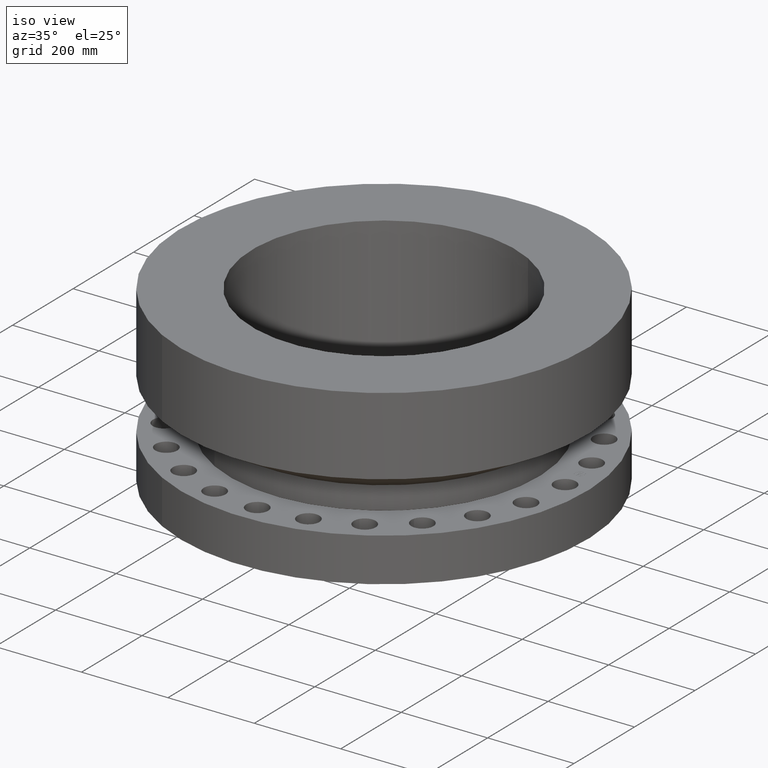
[diagram: clean part render]
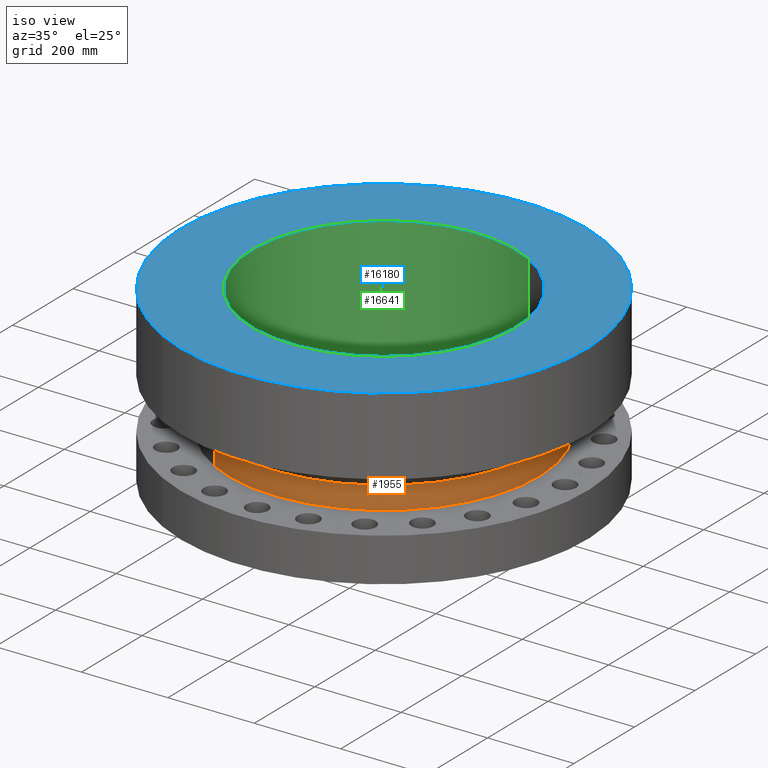
[diagram: same view with three faces highlighted in distinct colors, each labeled with its STEP entity id]
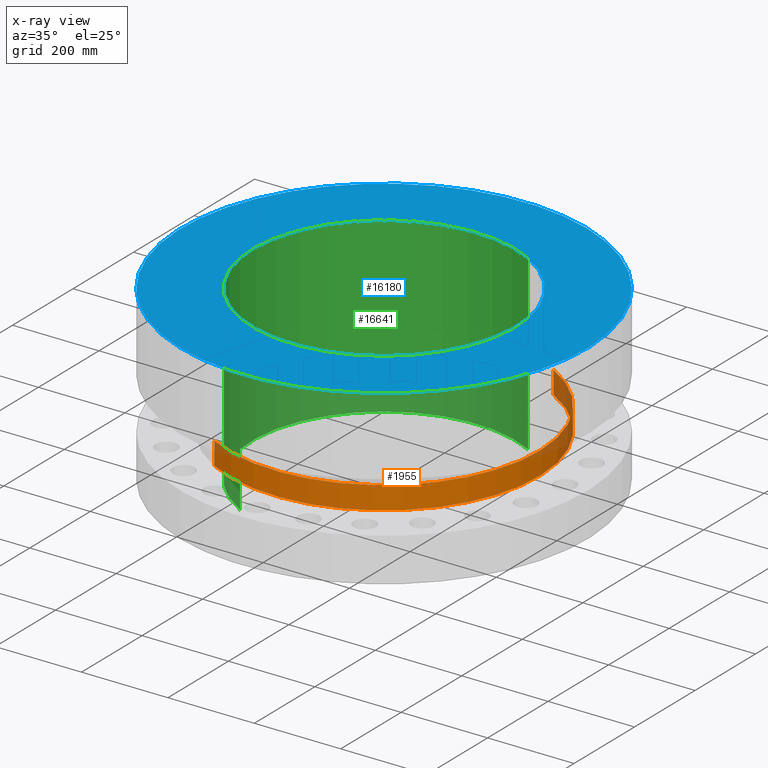
[diagram: x-ray of the same camera — body ghosted, the three highlighted faces saturated]
A machine part, iso view with three faces highlighted in distinct colors.
The next image is the same camera in x-ray (body ghosted, the three faces saturated) — at least one of them is partly hidden behind the body in this view.
Their STEP definitions:

[orange] entity #1955 — the highlighted cylindrical surface (partial cylindrical patch) has radius 358.775 mm, axis along (0, 0, -1).
#1717=AXIS2_PLACEMENT_3D('Circle Axis2P3D',#1715,#1716,$) ;
#1928=AXIS2_PLACEMENT_3D('Cylinder Axis2P3D',#1925,#1926,#1927) ;
#1939=AXIS2_PLACEMENT_3D('Circle Axis2P3D',#1937,#1938,$) ;
#1712=CARTESIAN_POINT('Vertex',(6.77188573281,12.3958536868,4.04098076213)) ;
#1715=CARTESIAN_POINT('Axis2P3D Location',(0.,0.,4.04098076213)) ;
#1719=CARTESIAN_POINT('Vertex',(-6.77188573281,-12.3958536868,4.04098076213)) ;
#1925=CARTESIAN_POINT('Axis2P3D Location',(0.,0.,7.75000000003)) ;
#1930=CARTESIAN_POINT('Line Origine',(6.77188573281,12.3958536868,5.08049038108)) ;
#1934=CARTESIAN_POINT('Vertex',(6.77188573281,12.3958536868,6.12000000002)) ;
#1937=CARTESIAN_POINT('Axis2P3D Location',(0.,0.,6.12000000002)) ;
#1941=CARTESIAN_POINT('Vertex',(-6.77188573281,-12.3958536868,6.12000000002)) ;
#1944=CARTESIAN_POINT('Line Origine',(-6.77188573281,-12.3958536868,5.08049038108)) ;
#1716=DIRECTION('Axis2P3D Direction',(-0.,0.,0.0393700787402)) ;
#1926=DIRECTION('Axis2P3D Direction',(0.,0.,-0.0393700787402)) ;
#1927=DIRECTION('Axis2P3D XDirection',(-0.0188750212049,-0.0345504945626,0.)) ;
#1931=DIRECTION('Vector Direction',(0.,0.,-0.0393700787402)) ;
#1938=DIRECTION('Axis2P3D Direction',(0.,0.,-0.0393700787402)) ;
#1945=DIRECTION('Vector Direction',(0.,0.,-0.0393700787402)) ;
#1932=VECTOR('Line Direction',#1931,0.0393700787402) ;
#1946=VECTOR('Line Direction',#1945,0.0393700787402) ;
#1950=ORIENTED_EDGE('',*,*,#1721,.F.) ;
#1951=ORIENTED_EDGE('',*,*,#1936,.T.) ;
#1952=ORIENTED_EDGE('',*,*,#1943,.T.) ;
#1953=ORIENTED_EDGE('',*,*,#1948,.F.) ;
#1955=ADVANCED_FACE('PartBody',(#1954),#1929,.T.) ;
#1718=CIRCLE('generated circle',#1717,14.1250000001) ;
#1940=CIRCLE('generated circle',#1939,14.1250000001) ;
#1929=CYLINDRICAL_SURFACE('generated cylinder',#1928,14.1250000001) ;
#1721=EDGE_CURVE('',#1713,#1720,#1718,.F.) ;
#1936=EDGE_CURVE('',#1713,#1935,#1933,.F.) ;
#1943=EDGE_CURVE('',#1935,#1942,#1940,.T.) ;
#1948=EDGE_CURVE('',#1720,#1942,#1947,.F.) ;
#1949=EDGE_LOOP('',(#1950,#1951,#1952,#1953)) ;
#1954=FACE_OUTER_BOUND('',#1949,.T.) ;
#1933=LINE('Line',#1930,#1932) ;
#1947=LINE('Line',#1944,#1946) ;
#1713=VERTEX_POINT('',#1712) ;
#1720=VERTEX_POINT('',#1719) ;
#1935=VERTEX_POINT('',#1934) ;
#1942=VERTEX_POINT('',#1941) ;

[blue] entity #16180 — the highlighted planar face has unit normal (0, 0, -1).
#5376=AXIS2_PLACEMENT_3D('Circle Axis2P3D',#5374,#5375,$) ;
#5395=AXIS2_PLACEMENT_3D('Circle Axis2P3D',#5393,#5394,$) ;
#16156=AXIS2_PLACEMENT_3D('Plane Axis2P3D',#16153,#16154,#16155) ;
#16164=AXIS2_PLACEMENT_3D('Circle Axis2P3D',#16162,#16163,$) ;
#16173=AXIS2_PLACEMENT_3D('Circle Axis2P3D',#16171,#16172,$) ;
#5371=CARTESIAN_POINT('Vertex',(8.86937246421,16.235277395,15.7500000001)) ;
#5374=CARTESIAN_POINT('Axis2P3D Location',(0.,0.,15.7500000001)) ;
#5378=CARTESIAN_POINT('Vertex',(-8.86937246421,-16.235277395,15.7500000001)) ;
#5393=CARTESIAN_POINT('Axis2P3D Location',(0.,0.,15.7500000001)) ;
#16153=CARTESIAN_POINT('Axis2P3D Location',(0.,18.5000000001,15.7500000001)) ;
#16162=CARTESIAN_POINT('Axis2P3D Location',(0.,0.,15.7500000001)) ;
#16166=CARTESIAN_POINT('Vertex',(-5.75310646327,-10.5309907427,15.7500000001)) ;
#16168=CARTESIAN_POINT('Vertex',(5.75310646327,10.5309907427,15.7500000001)) ;
#16171=CARTESIAN_POINT('Axis2P3D Location',(0.,0.,15.7500000001)) ;
#5375=DIRECTION('Axis2P3D Direction',(0.,0.,-0.0393700787402)) ;
#5394=DIRECTION('Axis2P3D Direction',(0.,0.,-0.0393700787402)) ;
#16154=DIRECTION('Axis2P3D Direction',(0.,0.,-0.0393700787402)) ;
#16155=DIRECTION('Axis2P3D XDirection',(0.0393700787402,0.,0.)) ;
#16163=DIRECTION('Axis2P3D Direction',(0.,0.,-0.0393700787402)) ;
#16172=DIRECTION('Axis2P3D Direction',(0.,0.,-0.0393700787402)) ;
#16159=ORIENTED_EDGE('',*,*,#5380,.F.) ;
#16160=ORIENTED_EDGE('',*,*,#5397,.F.) ;
#16177=ORIENTED_EDGE('',*,*,#16170,.T.) ;
#16178=ORIENTED_EDGE('',*,*,#16175,.T.) ;
#16179=FACE_BOUND('',#16176,.T.) ;
#16180=ADVANCED_FACE('PartBody',(#16161,#16179),#16157,.F.) ;
#5377=CIRCLE('generated circle',#5376,18.5000000001) ;
#5396=CIRCLE('generated circle',#5395,18.5000000001) ;
#16165=CIRCLE('generated circle',#16164,12.) ;
#16174=CIRCLE('generated circle',#16173,12.) ;
#5380=EDGE_CURVE('',#5372,#5379,#5377,.T.) ;
#5397=EDGE_CURVE('',#5379,#5372,#5396,.T.) ;
#16170=EDGE_CURVE('',#16167,#16169,#16165,.T.) ;
#16175=EDGE_CURVE('',#16169,#16167,#16174,.T.) ;
#16158=EDGE_LOOP('',(#16159,#16160)) ;
#16176=EDGE_LOOP('',(#16177,#16178)) ;
#16161=FACE_OUTER_BOUND('',#16158,.T.) ;
#16157=PLANE('',#16156) ;
#5372=VERTEX_POINT('',#5371) ;
#5379=VERTEX_POINT('',#5378) ;
#16167=VERTEX_POINT('',#16166) ;
#16169=VERTEX_POINT('',#16168) ;

[green] entity #16641 — the highlighted cylindrical surface (partial cylindrical patch) has radius 304.8 mm, axis along (0, 0, -1).
#16164=AXIS2_PLACEMENT_3D('Circle Axis2P3D',#16162,#16163,$) ;
#16602=AXIS2_PLACEMENT_3D('Cylinder Axis2P3D',#16599,#16600,#16601) ;
#16632=AXIS2_PLACEMENT_3D('Circle Axis2P3D',#16630,#16631,$) ;
#16162=CARTESIAN_POINT('Axis2P3D Location',(0.,0.,15.7500000001)) ;
#16166=CARTESIAN_POINT('Vertex',(-5.75310646327,-10.5309907427,15.7500000001)) ;
#16168=CARTESIAN_POINT('Vertex',(5.75310646327,10.5309907427,15.7500000001)) ;
#16599=CARTESIAN_POINT('Axis2P3D Location',(0.,0.,7.75000000003)) ;
#16608=CARTESIAN_POINT('Vertex',(-5.75310646327,-10.5309907427,0.)) ;
#16610=CARTESIAN_POINT('Vertex',(5.75310646327,10.5309907427,0.)) ;
#16613=CARTESIAN_POINT('Line Origine',(-5.75310646327,-10.5309907427,7.87500000003)) ;
#16618=CARTESIAN_POINT('Line Origine',(5.75310646327,10.5309907427,7.87500000003)) ;
#16630=CARTESIAN_POINT('Axis2P3D Location',(0.,0.,0.)) ;
#16163=DIRECTION('Axis2P3D Direction',(0.,0.,-0.0393700787402)) ;
#16600=DIRECTION('Axis2P3D Direction',(0.,0.,-0.0393700787402)) ;
#16601=DIRECTION('Axis2P3D XDirection',(-0.0188750212049,-0.0345504945626,0.)) ;
#16614=DIRECTION('Vector Direction',(0.,0.,-0.0393700787402)) ;
#16619=DIRECTION('Vector Direction',(0.,0.,-0.0393700787402)) ;
#16631=DIRECTION('Axis2P3D Direction',(0.,0.,-0.0393700787402)) ;
#16615=VECTOR('Line Direction',#16614,0.0393700787402) ;
#16620=VECTOR('Line Direction',#16619,0.0393700787402) ;
#16636=ORIENTED_EDGE('',*,*,#16634,.F.) ;
#16637=ORIENTED_EDGE('',*,*,#16622,.F.) ;
#16638=ORIENTED_EDGE('',*,*,#16170,.F.) ;
#16639=ORIENTED_EDGE('',*,*,#16617,.T.) ;
#16641=ADVANCED_FACE('PartBody',(#16640),#16603,.F.) ;
#16165=CIRCLE('generated circle',#16164,12.) ;
#16633=CIRCLE('generated circle',#16632,12.) ;
#16603=CYLINDRICAL_SURFACE('generated cylinder',#16602,12.) ;
#16170=EDGE_CURVE('',#16167,#16169,#16165,.T.) ;
#16617=EDGE_CURVE('',#16167,#16609,#16616,.T.) ;
#16622=EDGE_CURVE('',#16169,#16611,#16621,.T.) ;
#16634=EDGE_CURVE('',#16611,#16609,#16633,.F.) ;
#16635=EDGE_LOOP('',(#16636,#16637,#16638,#16639)) ;
#16640=FACE_OUTER_BOUND('',#16635,.T.) ;
#16616=LINE('Line',#16613,#16615) ;
#16621=LINE('Line',#16618,#16620) ;
#16167=VERTEX_POINT('',#16166) ;
#16169=VERTEX_POINT('',#16168) ;
#16609=VERTEX_POINT('',#16608) ;
#16611=VERTEX_POINT('',#16610) ;